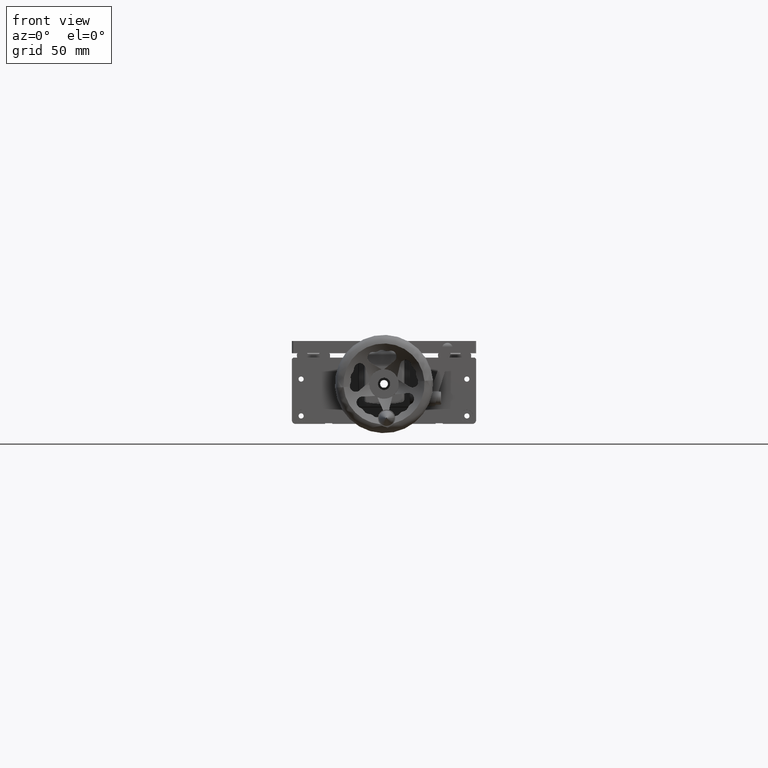
[diagram: clean part render]
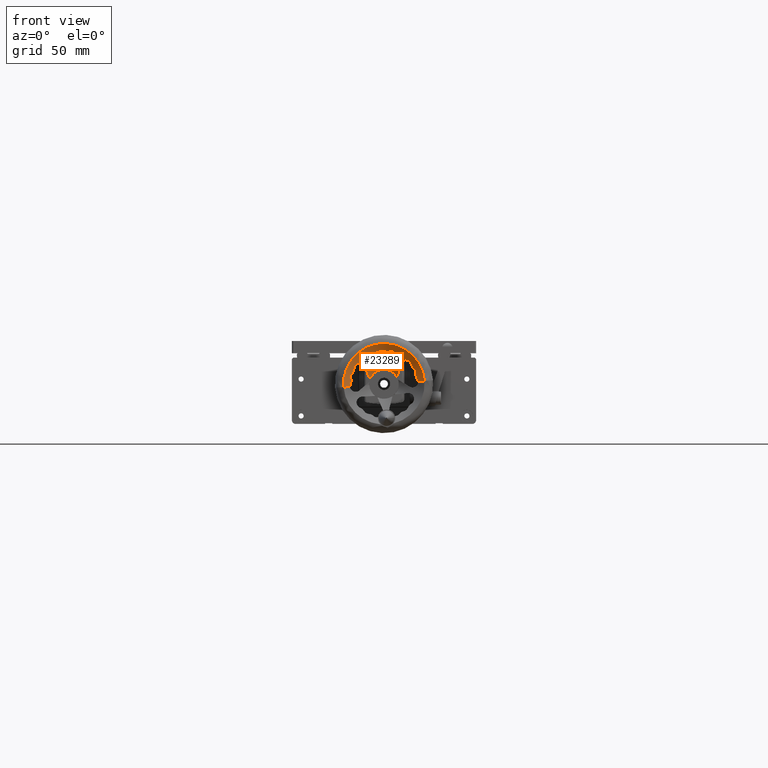
[diagram: same view with one face highlighted and labeled with its STEP entity id]
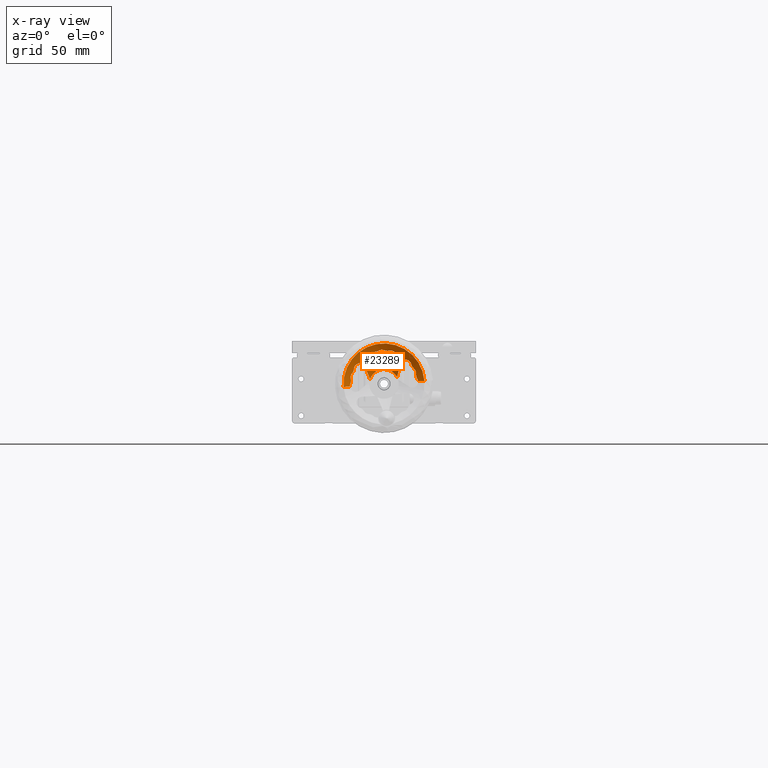
[diagram: x-ray of the same camera — body ghosted, the highlighted face saturated]
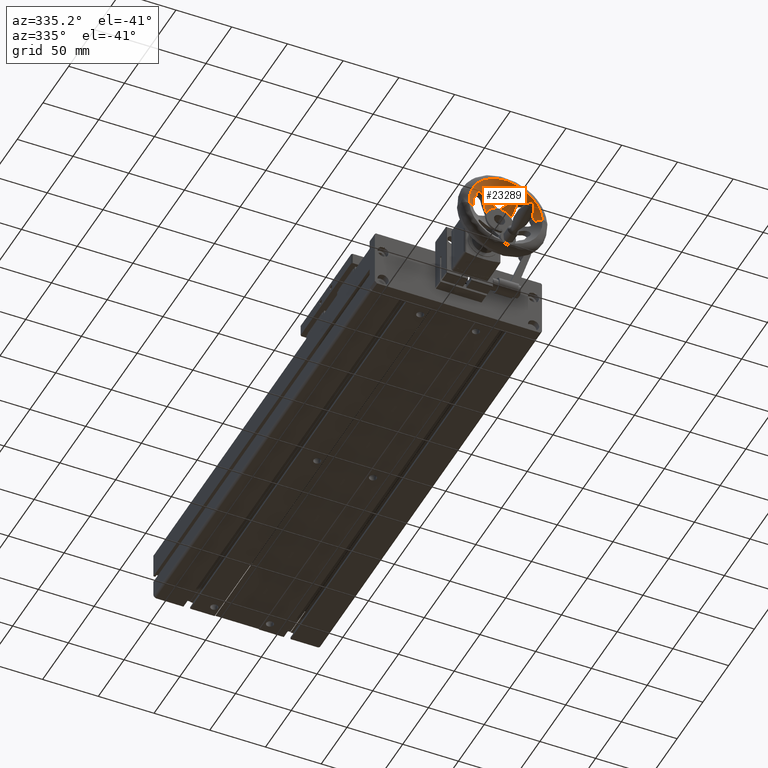
[diagram: same view with one face highlighted and labeled with its STEP entity id]
A machine part, front view. The second image highlights one B-rep face of the part: STEP entity #23289.
The next image is the same camera in x-ray: the body ghosted, the highlighted face saturated — about 0% of this face is hidden behind the body in this view.
A second angle (auxiliary view) of the same face is appended — the face is thin or edge-on in the first view.
In plain terms, the highlighted toroidal blend (fillet) surface has major radius 88.219 mm and minor (blend) radius 200 mm.
Its self-contained STEP definition (entity closure, byte-faithful):
#82 = B_SPLINE_CURVE_WITH_KNOTS ( 'NONE', 3,
 ( #43382, #9502, #24580, #35949 ),
 .UNSPECIFIED., .F., .F.,
 ( 4, 4 ),
 ( 0.003698056884272753024, 0.004453585710520117057 ),
 .UNSPECIFIED. ) ;
#85 = CARTESIAN_POINT ( 'NONE',  ( -52.67390733031064798, -230.6532000495078307, 23.08059119736535791 ) ) ;
#232 = CARTESIAN_POINT ( 'NONE',  ( -17.67465328702080285, -228.9157247906524333, 34.79869210840796967 ) ) ;
#454 = CARTESIAN_POINT ( 'NONE',  ( -54.95156363121439114, -231.2657713218469269, 18.90287018897480209 ) ) ;
#473 = CARTESIAN_POINT ( 'NONE',  ( -27.82647947996337479, -394.1257330768476095, 12.50000000000238920 ) ) ;
#564 = CARTESIAN_POINT ( 'NONE',  ( -5.594673746009703130, -230.9596663953782354, 28.58295155194748816 ) ) ;
#578 = CARTESIAN_POINT ( 'NONE',  ( -41.29862336663559574, -229.2852968396922790, 33.60711997345902091 ) ) ;
#693 = CARTESIAN_POINT ( 'NONE',  ( -55.03964226252472258, -231.2128299124468640, 18.16332217741607025 ) ) ;
#727 = EDGE_CURVE ( 'NONE', #47162, #46228, #4258, .T. ) ;
#808 = CARTESIAN_POINT ( 'NONE',  ( -7.707108599247605163, -231.1299468171497722, 31.51114292031698838 ) ) ;
#1100 = CARTESIAN_POINT ( 'NONE',  ( -39.20836809578368332, -221.0472645979106119, 16.30165905060681908 ) ) ;
#1183 = CARTESIAN_POINT ( 'NONE',  ( -4.557202331667935979, -230.6599187543164931, 26.22586071606409419 ) ) ;
#1306 = CARTESIAN_POINT ( 'NONE',  ( -1.785231399503061311, -231.2252468472366331, 22.27320990225285158 ) ) ;
#1534 = EDGE_CURVE ( 'NONE', #8725, #44437, #40959, .T. ) ;
#1537 = CARTESIAN_POINT ( 'NONE',  ( -0.1476990213807676533, -231.2327819996210962, 15.34137965526658220 ) ) ;
#1549 = DIRECTION ( 'NONE',  ( -0.07554112040527208305, 7.702172233337027443E-16, 0.9971426874464437429 ) ) ;
#1609 = B_SPLINE_CURVE_WITH_KNOTS ( 'NONE', 3,
 ( #41948, #15498, #30090, #693, #34037, #7847, #454, #26630, #41704, #11799, #26876, #33551 ),
 .UNSPECIFIED., .F., .F.,
 ( 4, 2, 2, 2, 2, 4 ),
 ( 0.000000000000000000, 0.001113396427630006062, 0.001670094641445014948, 0.002226792855260023834, 0.003340189282890042039, 0.004453585710520059811 ),
 .UNSPECIFIED. ) ;
#1640 = CARTESIAN_POINT ( 'NONE',  ( -29.18489885742737400, -231.2390054240903225, 40.30156600585516458 ) ) ;
#1877 = CARTESIAN_POINT ( 'NONE',  ( -28.45891885557747258, -231.1356288341648622, 40.18228834347160472 ) ) ;
#1917 = CARTESIAN_POINT ( 'NONE',  ( -3.606528884275387536, -230.8604761307231570, 25.10003856072996697 ) ) ;
#1946 = CARTESIAN_POINT ( 'NONE',  ( -26.27683208272021531, -221.7940607396463975, 25.70519006857440303 ) ) ;
#2015 = EDGE_CURVE ( 'NONE', #29307, #17644, #19300, .T. ) ;
#2090 = VERTEX_POINT ( 'NONE', #16914 ) ;
#2147 = CARTESIAN_POINT ( 'NONE',  ( -33.71041444142429100, -223.0604045670582707, 26.74357945796421987 ) ) ;
#2185 = CARTESIAN_POINT ( 'NONE',  ( -41.28435566092093723, -229.1709464758500587, 33.41878627727218287 ) ) ;
#2354 = CARTESIAN_POINT ( 'NONE',  ( -54.77278819947463262, -230.6531243515184144, 14.32714248308307958 ) ) ;
#2534 = EDGE_CURVE ( 'NONE', #44437, #17465, #6978, .T. ) ;
#2693 = CARTESIAN_POINT ( 'NONE',  ( -1.222462051564195962, -230.7139133281195882, 17.64809797551897219 ) ) ;
#2807 = CARTESIAN_POINT ( 'NONE',  ( -52.31303898568580024, -230.7841996747562803, 24.32834466755367586 ) ) ;
#2958 = CARTESIAN_POINT ( 'NONE',  ( -18.20508513389714977, -230.3162707390104913, 37.22085767712715665 ) ) ;
#3223 = CARTESIAN_POINT ( 'NONE',  ( -48.87678897796342881, -230.5446354805235956, 29.17158151248903408 ) ) ;
#3238 = ORIENTED_EDGE ( 'NONE', *, *, #23861, .F. ) ;
#3331 = CARTESIAN_POINT ( 'NONE',  ( -15.08588966018944610, -225.4012652566501060, 26.86422434737739806 ) ) ;
#3335 = EDGE_CURVE ( 'NONE', #31148, #36350, #10371, .T. ) ;
#3364 = CARTESIAN_POINT ( 'NONE',  ( -5.511643270383935089, -230.8604277091206995, 28.22931795733495264 ) ) ;
#3433 = CARTESIAN_POINT ( 'NONE',  ( -25.25359631021355966, -230.6599187452453918, 39.39309916879454931 ) ) ;
#3671 = CARTESIAN_POINT ( 'NONE',  ( -27.43543373053230638, -230.8604277933411311, 39.79854296812268899 ) ) ;
#3676 = CARTESIAN_POINT ( 'NONE',  ( -22.01975614839867745, -231.2314881548962262, 39.71061589711028716 ) ) ;
#3928 = CARTESIAN_POINT ( 'NONE',  ( -20.61792992746027409, -231.2440946140839060, 39.39157432133833936 ) ) ;
#3949 = CARTESIAN_POINT ( 'NONE',  ( -51.51233786122890734, -231.2706462050042262, 27.20291671497873764 ) ) ;
#3966 = CARTESIAN_POINT ( 'NONE',  ( -39.54603924097030898, -231.1660041917473905, 37.63397790699910672 ) ) ;
#3996 = CARTESIAN_POINT ( 'NONE',  ( -39.05087468797678696, -226.4222165838499166, 29.95913909891122273 ) ) ;
#4202 = CARTESIAN_POINT ( 'NONE',  ( -40.82071884220610514, -230.5771823532638791, 36.05125999424510042 ) ) ;
#4258 = B_SPLINE_CURVE_WITH_KNOTS ( 'NONE', 3,
 ( #1100, #31477, #24046, #46070, #12688, #46570, #4792, #45834 ),
 .UNSPECIFIED., .F., .F.,
 ( 4, 2, 2, 4 ),
 ( 1.250926888277100334E-16, 0.003033436196410289973, 0.006066872392820455047, 0.01213374478564074703 ),
 .UNSPECIFIED. ) ;
#4492 = CARTESIAN_POINT ( 'NONE',  ( -6.112206760636909486, -231.2307636894806535, 29.89450412591488515 ) ) ;
#4651 = DIRECTION ( 'NONE',  ( 4.298706452838559615E-15, 1.000000000000000000, -4.467646678869439002E-16 ) ) ;
#4699 = CARTESIAN_POINT ( 'NONE',  ( -41.24002553616512046, -229.9845705142102190, 34.83384085275373110 ) ) ;
#4792 = CARTESIAN_POINT ( 'NONE',  ( -42.58564026677970560, -225.4012652566524935, 24.78090969458392223 ) ) ;
#4899 = CARTESIAN_POINT ( 'NONE',  ( -17.14721350128712274, -221.0472645979109814, 17.97295881189756983 ) ) ;
#5472 = CARTESIAN_POINT ( 'NONE',  ( -11.55141506732128676, -229.5186692799599371, 31.97443235392964667 ) ) ;
#5540 = CARTESIAN_POINT ( 'NONE',  ( -35.51959555577328587, -230.7828937303669647, 38.58099468911488117 ) ) ;
#5638 = CARTESIAN_POINT ( 'NONE',  ( -26.99574536854892770, -221.4030008482864673, 25.10796967396344925 ) ) ;
#6159 = AXIS2_PLACEMENT_3D ( 'NONE', #28352, #8590, #31813 ) ;
#6455 = DIRECTION ( 'NONE',  ( 4.298706452838559615E-15, 1.000000000000000000, -4.467646678869439002E-16 ) ) ;
#6661 = CARTESIAN_POINT ( 'NONE',  ( -46.12871765139978919, -229.0706407530628610, 29.12783935230849153 ) ) ;
#6684 = ORIENTED_EDGE ( 'NONE', *, *, #16037, .T. ) ;
#6853 = CARTESIAN_POINT ( 'NONE',  ( -5.594673746009703130, -230.9596663953782354, 28.58295155194748816 ) ) ;
#6908 = EDGE_CURVE ( 'NONE', #30197, #42922, #13836, .T. ) ;
#6949 = VERTEX_POINT ( 'NONE', #6853 ) ;
#6978 = B_SPLINE_CURVE_WITH_KNOTS ( 'NONE', 3,
 ( #34060, #22432, #29619, #7624, #29367, #22686, #41238, #26405, #41480, #232, #11094, #26167, #30352, #21711, #2958, #22195, #37530, #45451, #41005, #44702, #15031, #40753, #3928, #18731, #21959, #3676, #10846, #18483, #37286, #11579 ),
 .UNSPECIFIED., .F., .F.,
 ( 4, 2, 2, 2, 2, 2, 2, 2, 2, 2, 2, 2, 2, 2, 4 ),
 ( 1.734723475976807094E-17, 0.001710417995197624063, 0.002565626992796427638, 0.003420835990395230779, 0.004276044987994034353, 0.005131253985592837928, 0.006841671980790444210, 0.007696880978389238244, 0.008552089975988032278, 0.009407298973586827179, 0.01026250797118562208, 0.01111771696878441525, 0.01197292596638321015, 0.01282813496398200331, 0.01368334396158079821 ),
 .UNSPECIFIED. ) ;
#7162 = CARTESIAN_POINT ( 'NONE',  ( -46.83643082899709498, -229.5185468306613359, 29.31727930400391458 ) ) ;
#7408 = DIRECTION ( 'NONE',  ( -0.9971426874464436318, 4.625929269271486111E-15, -0.07554112040527286021 ) ) ;
#7624 = CARTESIAN_POINT ( 'NONE',  ( -18.27405719886101565, -227.4900567352808025, 32.74147555680799826 ) ) ;
#7784 = B_SPLINE_CURVE_WITH_KNOTS ( 'NONE', 3,
 ( #11940, #30473, #22071, #41601 ),
 .UNSPECIFIED., .F., .F.,
 ( 4, 4 ),
 ( 0.003331543131867396954, 0.004457104842118895377 ),
 .UNSPECIFIED. ) ;
#7847 = CARTESIAN_POINT ( 'NONE',  ( -54.98449668841060856, -231.2591845239851693, 18.72044791958629872 ) ) ;
#8028 = VERTEX_POINT ( 'NONE', #30320 ) ;
#8313 = VERTEX_POINT ( 'NONE', #47134 ) ;
#8385 = CARTESIAN_POINT ( 'NONE',  ( -38.95530753739082996, -231.2451208571029611, 38.02055969152151249 ) ) ;
#8396 = ORIENTED_EDGE ( 'NONE', *, *, #23127, .F. ) ;
#8443 = VERTEX_POINT ( 'NONE', #10259 ) ;
#8472 = CARTESIAN_POINT ( 'NONE',  ( -53.90538829313129554, -230.9596664563088666, 21.03258674998555833 ) ) ;
#8576 = ORIENTED_EDGE ( 'NONE', *, *, #29305, .T. ) ;
#8590 = DIRECTION ( 'NONE',  ( 0.07554112040527195815, -7.702172233337023499E-16, -0.9971426874464437429 ) ) ;
#8725 = VERTEX_POINT ( 'NONE', #36893 ) ;
#8778 = CARTESIAN_POINT ( 'NONE',  ( -30.30277080671440970, -231.2591845237836594, 40.25103335488402223 ) ) ;
#8814 = CARTESIAN_POINT ( 'NONE',  ( -4.661649664188309394, -230.6532000530875166, 26.38287580951248756 ) ) ;
#9221 = CARTESIAN_POINT ( 'NONE',  ( -39.20836809578368332, -221.0472645979106119, 16.30165905060681908 ) ) ;
#9222 = ORIENTED_EDGE ( 'NONE', *, *, #27879, .F. ) ;
#9264 = CARTESIAN_POINT ( 'NONE',  ( -31.37639499352703965, -231.1347387500529180, 39.95976834130147637 ) ) ;
#9340 = CARTESIAN_POINT ( 'NONE',  ( -39.67807669577369012, -226.8822082838672145, 30.39239254586065897 ) ) ;
#9467 = CARTESIAN_POINT ( 'NONE',  ( -34.41563106280570139, -230.6531243522441059, 38.69208057288691549 ) ) ;
#9502 = CARTESIAN_POINT ( 'NONE',  ( -1.691176848825176382, -231.0841938273595417, 21.42077416371177989 ) ) ;
#9542 = CARTESIAN_POINT ( 'NONE',  ( -37.55060987438738351, -225.4012652566472070, 29.05581040389767722 ) ) ;
#9740 = CARTESIAN_POINT ( 'NONE',  ( -27.77033326856107465, -230.9596664961958936, 39.93923047635674806 ) ) ;
#9782 = CARTESIAN_POINT ( 'NONE',  ( -4.337567053168426057, -230.6865836009214661, 25.92289695455112053 ) ) ;
#10133 = CARTESIAN_POINT ( 'NONE',  ( -43.41919839021870331, -226.7145665476631962, 26.87370763833941822 ) ) ;
#10237 = DIRECTION ( 'NONE',  ( -4.298706452838559615E-15, -1.000000000000000000, 4.467646678869439002E-16 ) ) ;
#10259 = CARTESIAN_POINT ( 'NONE',  ( 5.079229205769499877, -235.0472645979107824, 14.99285697337626466 ) ) ;
#10371 = B_SPLINE_CURVE_WITH_KNOTS ( 'NONE', 3,
 ( #45096, #3331, #47835, #18382, #37424, #33475, #48586, #10985 ),
 .UNSPECIFIED., .F., .F.,
 ( 4, 2, 2, 4 ),
 ( 3.899695414178870916E-16, 0.006066872392817469588, 0.009100308589225990577, 0.01213374478563451070 ),
 .UNSPECIFIED. ) ;
#10489 = CARTESIAN_POINT ( 'NONE',  ( -9.249767310456496361, -230.6556149519027770, 32.10769443302439186 ) ) ;
#10611 = CARTESIAN_POINT ( 'NONE',  ( -44.84237441322410689, -228.1301285126478149, 28.47637828949076777 ) ) ;
#10632 = CARTESIAN_POINT ( 'NONE',  ( -32.01572010653750766, -230.9596664132260742, 39.61761022849049141 ) ) ;
#10654 = CARTESIAN_POINT ( 'NONE',  ( -27.82647947996269266, -235.0472645979106403, 12.50000000000231815 ) ) ;
#10730 = CARTESIAN_POINT ( 'NONE',  ( -54.71918968584881071, -230.6865836019238998, 15.44708457711800165 ) ) ;
#10841 = CARTESIAN_POINT ( 'NONE',  ( -24.14381829159810522, -230.7841996630287724, 39.44326148905463469 ) ) ;
#10846 = CARTESIAN_POINT ( 'NONE',  ( -22.30498103527281728, -231.1977958584855912, 39.72157898649940933 ) ) ;
#10985 = CARTESIAN_POINT ( 'NONE',  ( -17.14721350128712274, -221.0472645979109814, 17.97295881189756983 ) ) ;
#11094 = CARTESIAN_POINT ( 'NONE',  ( -17.66816714205099004, -229.0706407672514899, 35.04474783805611082 ) ) ;
#11111 = VERTEX_POINT ( 'NONE', #46970 ) ;
#11190 = CARTESIAN_POINT ( 'NONE',  ( -53.44834770248142775, -230.7828937674311760, 21.60616223109007805 ) ) ;
#11360 = CARTESIAN_POINT ( 'NONE',  ( -45.89670907696993396, -228.9157247770241099, 29.04563525917123457 ) ) ;
#11579 = CARTESIAN_POINT ( 'NONE',  ( -23.43088182212946791, -230.9596664132258184, 39.58492642461180111 ) ) ;
#11622 = CARTESIAN_POINT ( 'NONE',  ( -38.31727656665854909, -231.2709559180369183, 38.32971794325673187 ) ) ;
#11675 = B_SPLINE_CURVE_WITH_KNOTS ( 'NONE', 3,
 ( #43995, #10133, #17773, #12881, #27961, #48225, #10611, #29899, #14317, #11360, #6661, #7162, #41505, #41024, #29153, #3223, #48467, #29387, #26187, #25946, #44237, #18268, #44476, #3949, #33599, #48707, #26429, #25687, #21734, #40772 ),
 .UNSPECIFIED., .F., .F.,
 ( 4, 2, 2, 2, 2, 2, 2, 2, 2, 2, 2, 2, 2, 2, 4 ),
 ( 9.813077866773593251E-18, 0.001710417985831582050, 0.002565626978747364943, 0.003420835971663148053, 0.004276044964578931164, 0.005131253957494713407, 0.006841671943326276158, 0.007696880936242031512, 0.008552089929157787734, 0.009407298922073540487, 0.01026250791498929497, 0.01111771690790504946, 0.01197292590082080395, 0.01282813489373655844, 0.01368334388665231292 ),
 .UNSPECIFIED. ) ;
#11799 = CARTESIAN_POINT ( 'NONE',  ( -54.34933470578325654, -231.1356288327107791, 20.45281195881515046 ) ) ;
#11857 = CARTESIAN_POINT ( 'NONE',  ( -40.28577853425090183, -230.9290274298862471, 36.90122844277672698 ) ) ;
#11940 = CARTESIAN_POINT ( 'NONE',  ( -1.717283661433653075, -230.7295666138571448, 19.81287386130084371 ) ) ;
#12009 = ORIENTED_EDGE ( 'NONE', *, *, #6908, .F. ) ;
#12114 = ORIENTED_EDGE ( 'NONE', *, *, #29441, .F. ) ;
#12128 = VERTEX_POINT ( 'NONE', #22367 ) ;
#12306 = VERTEX_POINT ( 'NONE', #33214 ) ;
#12353 = CARTESIAN_POINT ( 'NONE',  ( -55.61684617909507011, -231.2658271515405204, 10.39466897430750514 ) ) ;
#12391 = CARTESIAN_POINT ( 'NONE',  ( -12.85813473543056240, -228.6074920186753729, 31.32132866833777740 ) ) ;
#12544 = VERTEX_POINT ( 'NONE', #8472 ) ;
#12688 = CARTESIAN_POINT ( 'NONE',  ( -40.92696274858333538, -223.0604045670598623, 20.61650075677261995 ) ) ;
#12879 = AXIS2_PLACEMENT_3D ( 'NONE', #43802, #25024, #7408 ) ;
#12881 = CARTESIAN_POINT ( 'NONE',  ( -44.12540587923259494, -227.4900567292112612, 27.83985338831459444 ) ) ;
#12882 = CARTESIAN_POINT ( 'NONE',  ( -13.88249829643890365, -227.6530563109671448, 30.32040538368483595 ) ) ;
#12898 = CARTESIAN_POINT ( 'NONE',  ( -3.101732544837720873, -231.0419695317909543, 24.66815996622788631 ) ) ;
#12951 = CARTESIAN_POINT ( 'NONE',  ( -36.25226956726548622, -230.9596663953781217, 38.61360906154623507 ) ) ;
#13057 = CARTESIAN_POINT ( 'NONE',  ( -41.13872838868501702, -228.6978953784459918, 32.68638664340360123 ) ) ;
#13264 = CARTESIAN_POINT ( 'NONE',  ( -39.05087468797678696, -226.4222165838499166, 29.95913909891122273 ) ) ;
#13349 = CARTESIAN_POINT ( 'NONE',  ( -0.03611278083028897357, -231.2658271515406909, 14.60533102569724662 ) ) ;
#13494 = ORIENTED_EDGE ( 'NONE', *, *, #18638, .T. ) ;
#13495 = CARTESIAN_POINT ( 'NONE',  ( -3.864309005543599351, -230.7841996931746849, 25.35751615061857933 ) ) ;
#13524 = CARTESIAN_POINT ( 'NONE',  ( -20.70747179473723065, -225.4012652566526640, 30.33180584336236052 ) ) ;
#13529 = CARTESIAN_POINT ( 'NONE',  ( -41.02471212221548313, -228.4576811112556243, 32.33686378989789034 ) ) ;
#13746 = ORIENTED_EDGE ( 'NONE', *, *, #25798, .F. ) ;
#13836 = B_SPLINE_CURVE_WITH_KNOTS ( 'NONE', 3,
 ( #21178, #2185, #42965, #39258, #13057, #13529, #17461, #20461, #16752, #17230, #46943, #9340, #32319, #35790 ),
 .UNSPECIFIED., .F., .F.,
 ( 4, 2, 2, 2, 2, 2, 4 ),
 ( 0.008474654097250431534, 0.009134211745428808676, 0.009793769393607184084, 0.01045332704178556123, 0.01111288468996393664, 0.01243199998632067704, 0.01375111528267741745 ),
 .UNSPECIFIED. ) ;
#14317 = CARTESIAN_POINT ( 'NONE',  ( -45.45385495941651044, -228.6034456292861137, 28.84878373790523653 ) ) ;
#14335 = ORIENTED_EDGE ( 'NONE', *, *, #17009, .T. ) ;
#14892 = CARTESIAN_POINT ( 'NONE',  ( -52.60827204761010023, -230.6599187474724602, 23.25738202415041300 ) ) ;
#14922 = B_SPLINE_CURVE_WITH_KNOTS ( 'NONE', 3,
 ( #48930, #21698, #2693, #36787, #15019, #41716, #19201, #31075 ),
 .UNSPECIFIED., .F., .F.,
 ( 4, 2, 2, 4 ),
 ( 3.774035969552830620E-17, 0.001665771565933717342, 0.002498657348900556931, 0.003331543131867396954 ),
 .UNSPECIFIED. ) ;
#15019 = CARTESIAN_POINT ( 'NONE',  ( -1.552145645833394205, -230.6483000941420016, 18.71849383253596244 ) ) ;
#15031 = CARTESIAN_POINT ( 'NONE',  ( -19.85250087208034131, -231.1270689145548829, 39.00294621420946584 ) ) ;
#15247 = EDGE_CURVE ( 'NONE', #6949, #31148, #33255, .T. ) ;
#15258 = CARTESIAN_POINT ( 'NONE',  ( -43.23364257840049873, -226.4222165838593810, 26.40783632054456831 ) ) ;
#15272 = CARTESIAN_POINT ( 'NONE',  ( -25.99933721304265788, -230.6531243613654283, 39.44630874829438483 ) ) ;
#15316 = CARTESIAN_POINT ( 'NONE',  ( -36.25226956726548622, -230.9596663953781217, 38.61360906154623507 ) ) ;
#15498 = CARTESIAN_POINT ( 'NONE',  ( -54.99580234014707969, -231.0587844106613602, 17.24845366566926685 ) ) ;
#15611 = CARTESIAN_POINT ( 'NONE',  ( -6.918471877808019421, -231.2516547550109465, 30.89850046893487345 ) ) ;
#15641 = EDGE_CURVE ( 'NONE', #21743, #30197, #43297, .T. ) ;
#15694 = CARTESIAN_POINT ( 'NONE',  ( -14.69038034189883390, -226.4222165838515934, 28.57020489277563158 ) ) ;
#15800 = CARTESIAN_POINT ( 'NONE',  ( -37.46271814605626815, -231.2049279898749035, 38.56054914162387348 ) ) ;
#15850 = CARTESIAN_POINT ( 'NONE',  ( -7.954572327149966426, -231.0716637388796642, 31.65151724641324193 ) ) ;
#15954 = ORIENTED_EDGE ( 'NONE', *, *, #3335, .F. ) ;
#16037 = EDGE_CURVE ( 'NONE', #8313, #12544, #1609, .T. ) ;
#16043 = CARTESIAN_POINT ( 'NONE',  ( -40.74331836302079779, -230.6424690281264986, 36.19947359486510408 ) ) ;
#16329 = CARTESIAN_POINT ( 'NONE',  ( -0.3643233461119283478, -231.1358801580701368, 16.04377162237389598 ) ) ;
#16469 = VERTEX_POINT ( 'NONE', #36171 ) ;
#16479 = CARTESIAN_POINT ( 'NONE',  ( -5.399283136547426309, -230.7828937303671353, 27.87605876365554636 ) ) ;
#16572 = CARTESIAN_POINT ( 'NONE',  ( -0.05019668824092277104, -231.2658271515407478, 14.79123858451915119 ) ) ;
#16585 = VERTEX_POINT ( 'NONE', #28984 ) ;
#16627 = VERTEX_POINT ( 'NONE', #26769 ) ;
#16672 = CARTESIAN_POINT ( 'NONE',  ( -29.56427321130262698, -231.2659377550064619, 40.31839736837605415 ) ) ;
#16752 = CARTESIAN_POINT ( 'NONE',  ( -40.71575348788409343, -227.9685632785865721, 31.66929411916948212 ) ) ;
#16820 = CARTESIAN_POINT ( 'NONE',  ( -13.04924410248514910, -228.4506557143349141, 31.17725140566467701 ) ) ;
#16914 = CARTESIAN_POINT ( 'NONE',  ( -29.73149794656968226, -221.0472645979109245, 24.34782278066056804 ) ) ;
#17009 = EDGE_CURVE ( 'NONE', #16469, #11111, #23518, .T. ) ;
#17059 = B_SPLINE_CURVE_WITH_KNOTS ( 'NONE', 3,
 ( #13349, #16572, #43269, #1537, #35849, #16329, #31661, #20740 ),
 .UNSPECIFIED., .F., .F.,
 ( 4, 2, 2, 4 ),
 ( 0.01147918035795805064, 0.01203022124013161318, 0.01258126212230517571, 0.01368334388665229905 ),
 .UNSPECIFIED. ) ;
#17065 = DIRECTION ( 'NONE',  ( 0.9971426874464437429, 0.000000000000000000, 0.07554112040527208305 ) ) ;
#17121 = CARTESIAN_POINT ( 'NONE',  ( -32.01572010653750766, -230.9596664132260742, 39.61761022849049141 ) ) ;
#17226 = CARTESIAN_POINT ( 'NONE',  ( -27.72808387752419890, -221.0472645979106403, 24.49959658928067086 ) ) ;
#17230 = CARTESIAN_POINT ( 'NONE',  ( -40.42719675010799563, -227.6007957380787161, 31.20023632668228686 ) ) ;
#17461 = CARTESIAN_POINT ( 'NONE',  ( -40.95763521185892131, -228.3365862553704630, 32.16611709150507181 ) ) ;
#17465 = VERTEX_POINT ( 'NONE', #28522 ) ;
#17582 = EDGE_CURVE ( 'NONE', #12128, #16585, #7784, .T. ) ;
#17644 = VERTEX_POINT ( 'NONE', #19333 ) ;
#17736 = B_SPLINE_CURVE_WITH_KNOTS ( 'NONE', 3,
 ( #25768, #37631, #2807, #33924, #45055, #14892, #85, #30212, #29976, #11190, #29476, #44317 ),
 .UNSPECIFIED., .F., .F.,
 ( 4, 2, 2, 2, 2, 4 ),
 ( 3.538155541877297313E-17, 0.001114276210529795618, 0.001671414315794672503, 0.002228552421059550037, 0.003342828631589305106, 0.004457104842119060176 ),
 .UNSPECIFIED. ) ;
#17773 = CARTESIAN_POINT ( 'NONE',  ( -43.66833472391281390, -227.0192036694134288, 27.28703771704373082 ) ) ;
#17896 = CARTESIAN_POINT ( 'NONE',  ( -5.972467919540295433, -231.1960453808966065, 29.63958319226526328 ) ) ;
#18268 = CARTESIAN_POINT ( 'NONE',  ( -50.98551660573696864, -231.2154519200251173, 27.87984806961713602 ) ) ;
#18373 = CARTESIAN_POINT ( 'NONE',  ( -54.72737013222339897, -230.6532000534531619, 14.88446289104675024 ) ) ;
#18382 = CARTESIAN_POINT ( 'NONE',  ( -16.09826631798863517, -223.0604045670585265, 22.49746279979789776 ) ) ;
#18479 = CARTESIAN_POINT ( 'NONE',  ( -25.44201679322950227, -230.6532000484873208, 39.40089066333084844 ) ) ;
#18483 = CARTESIAN_POINT ( 'NONE',  ( -22.87494595173260947, -231.1002210257393301, 39.69158499891209146 ) ) ;
#18638 = EDGE_CURVE ( 'NONE', #22967, #16585, #82, .T. ) ;
#18707 = EDGE_CURVE ( 'NONE', #8313, #19955, #26596, .T. ) ;
#18731 = CARTESIAN_POINT ( 'NONE',  ( -21.16250755692458796, -231.2706462057042813, 39.57004110543438458 ) ) ;
#18770 = CARTESIAN_POINT ( 'NONE',  ( -40.48766183040856959, -230.8246480840628010, 36.63030447816802138 ) ) ;
#19009 = CARTESIAN_POINT ( 'NONE',  ( -55.63087259773213589, -231.2658271515405488, 10.57981768139541146 ) ) ;
#19048 = CARTESIAN_POINT ( 'NONE',  ( -5.746798111821793675, -231.0988003334201721, 29.12153893849552588 ) ) ;
#19201 = CARTESIAN_POINT ( 'NONE',  ( -1.696390408378760206, -230.6912643176353583, 19.53708294916075872 ) ) ;
#19300 = B_SPLINE_CURVE_WITH_KNOTS ( 'NONE', 3,
 ( #32476, #27585, #9264, #28532, #36193, #8778, #43605, #16672, #1640, #1877, #24348, #9740 ),
 .UNSPECIFIED., .F., .F.,
 ( 4, 2, 2, 2, 2, 4 ),
 ( 0.000000000000000000, 0.001113396425192979136, 0.001670094637789466211, 0.002226792850385953502, 0.003340189275578927218, 0.004453585700771901801 ),
 .UNSPECIFIED. ) ;
#19310 = EDGE_CURVE ( 'NONE', #16469, #8443, #24228, .T. ) ;
#19333 = CARTESIAN_POINT ( 'NONE',  ( -27.77033326856107465, -230.9596664961958936, 39.93923047635674806 ) ) ;
#19441 = ORIENTED_EDGE ( 'NONE', *, *, #26817, .F. ) ;
#19738 = CARTESIAN_POINT ( 'NONE',  ( -41.31536102479370953, -229.6455795070858983, 34.21545216845822779 ) ) ;
#19955 = VERTEX_POINT ( 'NONE', #27823 ) ;
#20025 = CARTESIAN_POINT ( 'NONE',  ( -14.37431944683643614, -227.0263227924084788, 29.50242057365009529 ) ) ;
#20269 = CARTESIAN_POINT ( 'NONE',  ( -12.23565641507226864, -229.0724057764062422, 31.69664529948307319 ) ) ;
#20423 = CARTESIAN_POINT ( 'NONE',  ( -32.92950552413935128, -222.6226366815943152, 26.27338417857830777 ) ) ;
#20461 = CARTESIAN_POINT ( 'NONE',  ( -40.80341552535290361, -228.0923246801206119, 31.83269587247192334 ) ) ;
#20740 = CARTESIAN_POINT ( 'NONE',  ( -0.7088692954568474036, -230.9596664332800060, 16.68924069848683089 ) ) ;
#20741 = CIRCLE ( 'NONE', #12879, 11.99999999999999822 ) ;
#20807 = AXIS2_PLACEMENT_3D ( 'NONE', #39567, #1549, #17065 ) ;
#21097 = CARTESIAN_POINT ( 'NONE',  ( -54.71957864335205812, -230.6599187549663839, 15.07288337052121285 ) ) ;
#21141 = AXIS2_PLACEMENT_3D ( 'NONE', #36436, #10237, #40389 ) ;
#21178 = CARTESIAN_POINT ( 'NONE',  ( -41.29862336663559574, -229.2852968396922790, 33.60711997345902091 ) ) ;
#21209 = ORIENTED_EDGE ( 'NONE', *, *, #21843, .F. ) ;
#21257 = CARTESIAN_POINT ( 'NONE',  ( -1.953098961300612890, -231.2684661289041230, 22.87342626463408735 ) ) ;
#21598 = B_SPLINE_CURVE_WITH_KNOTS ( 'NONE', 3,
 ( #17121, #31733, #43348, #39625, #46835, #32444, #47075, #9467, #47546, #5540, #43807, #12951 ),
 .UNSPECIFIED., .F., .F.,
 ( 4, 2, 2, 2, 2, 4 ),
 ( -1.469766248811399389E-10, 0.001114276024044774617, 0.001671414109555478377, 0.002228552195066181921, 0.003342828366087594646, 0.004457104537109006503 ),
 .UNSPECIFIED. ) ;
#21698 = CARTESIAN_POINT ( 'NONE',  ( -0.9920733588889456556, -230.8113833044535284, 17.15226973529853183 ) ) ;
#21711 = CARTESIAN_POINT ( 'NONE',  ( -18.09070384062738412, -230.1936771873863279, 36.98742159013250586 ) ) ;
#21734 = CARTESIAN_POINT ( 'NONE',  ( -52.20517285178925704, -231.0364455747976820, 25.33031927049965759 ) ) ;
#21743 = VERTEX_POINT ( 'NONE', #26975 ) ;
#21840 = CARTESIAN_POINT ( 'NONE',  ( -54.83225293482365004, -230.6793691775528146, 13.96173033337506908 ) ) ;
#21843 = EDGE_CURVE ( 'NONE', #46228, #12306, #11675, .T. ) ;
#21959 = CARTESIAN_POINT ( 'NONE',  ( -21.44884126854018191, -231.2681675500790561, 39.63536675422233202 ) ) ;
#22055 = ORIENTED_EDGE ( 'NONE', *, *, #28156, .F. ) ;
#22071 = CARTESIAN_POINT ( 'NONE',  ( -1.743489532065091607, -230.8594226583805096, 20.56014073416136156 ) ) ;
#22191 = CARTESIAN_POINT ( 'NONE',  ( -24.87939509073801503, -230.6865835839498402, 39.39271020088952469 ) ) ;
#22195 = CARTESIAN_POINT ( 'NONE',  ( -18.47576664013246273, -230.5446354971958556, 37.67183606235567339 ) ) ;
#22310 = ORIENTED_EDGE ( 'NONE', *, *, #17582, .F. ) ;
#22367 = CARTESIAN_POINT ( 'NONE',  ( -1.717283661433653075, -230.7295666138571448, 19.81287386130084371 ) ) ;
#22427 = CARTESIAN_POINT ( 'NONE',  ( -24.69416842939728340, -230.7063936694196684, 39.40000453875668285 ) ) ;
#22432 = CARTESIAN_POINT ( 'NONE',  ( -18.97468629686923336, -226.7145665492641342, 31.77127686053785638 ) ) ;
#22472 = CARTESIAN_POINT ( 'NONE',  ( -41.17009601092145488, -230.1467556412366378, 35.14644175161594575 ) ) ;
#22498 = DIRECTION ( 'NONE',  ( -0.9971426874464438539, 4.205390244792258451E-15, -0.07554112040527199978 ) ) ;
#22686 = CARTESIAN_POINT ( 'NONE',  ( -17.96851839897196612, -227.9709854208679474, 33.39473694167589457 ) ) ;
#22959 = CARTESIAN_POINT ( 'NONE',  ( -36.94187154983471544, -231.1272769549022144, 38.63342749567068068 ) ) ;
#22967 = VERTEX_POINT ( 'NONE', #32119 ) ;
#23003 = CARTESIAN_POINT ( 'NONE',  ( -6.433601139829833393, -231.2678754046115728, 30.36962942714599478 ) ) ;
#23127 = EDGE_CURVE ( 'NONE', #17465, #17644, #34483, .T. ) ;
#23205 = CARTESIAN_POINT ( 'NONE',  ( -37.63803081624844538, -231.2254493560413948, 38.52587394767998319 ) ) ;
#23247 = CARTESIAN_POINT ( 'NONE',  ( -5.658688040699238364, -231.0361768311458945, 28.85559377236666379 ) ) ;
#23289 = ADVANCED_FACE ( 'NONE', ( #23661 ), #40902, .F. ) ;
#23460 = CARTESIAN_POINT ( 'NONE',  ( -39.81215084416654548, -231.1009350148751196, 37.40644999364469214 ) ) ;
#23507 = CARTESIAN_POINT ( 'NONE',  ( -14.02039945568158252, -227.4949366025861650, 30.12632483318116527 ) ) ;
#23518 = CIRCLE ( 'NONE', #6159, 200.0000000000050022 ) ;
#23661 = FACE_OUTER_BOUND ( 'NONE', #39402, .T. ) ;
#23759 = ORIENTED_EDGE ( 'NONE', *, *, #15641, .F. ) ;
#23861 = EDGE_CURVE ( 'NONE', #36350, #8725, #27492, .T. ) ;
#23865 = VERTEX_POINT ( 'NONE', #44343 ) ;
#23885 = CARTESIAN_POINT ( 'NONE',  ( -4.952490393404144875, -230.6531243522442765, 26.86045356478096835 ) ) ;
#23992 = CARTESIAN_POINT ( 'NONE',  ( -12.45209441186005961, -228.9178738112349549, 31.58071376781815331 ) ) ;
#24046 = CARTESIAN_POINT ( 'NONE',  ( -39.90649416255738657, -221.7940607396464543, 18.05443040024961476 ) ) ;
#24228 = CIRCLE ( 'NONE', #42407, 33.00000000000000711 ) ;
#24233 = CARTESIAN_POINT ( 'NONE',  ( -10.30313599986837758, -230.1981381626736436, 32.18978667577449215 ) ) ;
#24348 = CARTESIAN_POINT ( 'NONE',  ( -28.10490519563917644, -231.0588080328817853, 40.07978034997623240 ) ) ;
#24580 = CARTESIAN_POINT ( 'NONE',  ( -1.692321319262891643, -231.0269419708645557, 21.17118467647546254 ) ) ;
#24889 = CARTESIAN_POINT ( 'NONE',  ( -24.15550051025014611, -223.0604045670598339, 27.46743664793876860 ) ) ;
#25024 = DIRECTION ( 'NONE',  ( -4.298706452838559615E-15, -1.000000000000000000, 4.467646678869439002E-16 ) ) ;
#25064 = CARTESIAN_POINT ( 'NONE',  ( -55.00828303037857125, -230.7828937257423831, 13.24288243912940644 ) ) ;
#25687 = CARTESIAN_POINT ( 'NONE',  ( -52.15710555864200870, -231.1002210405309256, 25.61185016706270900 ) ) ;
#25768 = CARTESIAN_POINT ( 'NONE',  ( -52.22746086693567946, -230.9596664332798071, 25.05016442526990517 ) ) ;
#25798 = EDGE_CURVE ( 'NONE', #23865, #8028, #17059, .T. ) ;
#25946 = CARTESIAN_POINT ( 'NONE',  ( -50.34457634404368065, -231.0682110994574998, 28.44799778720447847 ) ) ;
#26119 = B_SPLINE_CURVE_WITH_KNOTS ( 'NONE', 3,
 ( #35754, #1917, #13495, #43648, #9782, #1183, #8814, #23885, #38978, #16479, #3364, #29804 ),
 .UNSPECIFIED., .F., .F.,
 ( 4, 2, 2, 2, 2, 4 ),
 ( -1.469766639124181484E-10, 0.001114276024044739489, 0.001671414109555445634, 0.002228552195066151997, 0.003342828366087556048, 0.004457104537108961401 ),
 .UNSPECIFIED. ) ;
#26167 = CARTESIAN_POINT ( 'NONE',  ( -17.70669444455412744, -229.5185468464328267, 35.77636323570747834 ) ) ;
#26187 = CARTESIAN_POINT ( 'NONE',  ( -49.88010744153961440, -230.9261969511675261, 28.74907281709489482 ) ) ;
#26201 = CARTESIAN_POINT ( 'NONE',  ( -37.98111326642636953, -231.2542024538801400, 38.43728193989952047 ) ) ;
#26405 = CARTESIAN_POINT ( 'NONE',  ( -17.76849449430806160, -228.4463586750178763, 34.08102330786631029 ) ) ;
#26424 = ORIENTED_EDGE ( 'NONE', *, *, #2015, .T. ) ;
#26429 = CARTESIAN_POINT ( 'NONE',  ( -52.00950268320527670, -231.1977958677377956, 26.16318766121444028 ) ) ;
#26445 = CARTESIAN_POINT ( 'NONE',  ( -40.95706143667199228, -230.4409009282474869, 35.75314158344242799 ) ) ;
#26451 = ORIENTED_EDGE ( 'NONE', *, *, #18707, .F. ) ;
#26596 = B_SPLINE_CURVE_WITH_KNOTS ( 'NONE', 3,
 ( #37169, #32713, #48330, #40387, #10730, #21097, #18373, #2354, #21840, #25064, #32477, #36933 ),
 .UNSPECIFIED., .F., .F.,
 ( 4, 2, 2, 2, 2, 4 ),
 ( -1.469766051486603997E-10, 0.001114276016371194963, 0.001671414098045090032, 0.002228552179718985317, 0.003342828343066770250, 0.004457104506414555183 ),
 .UNSPECIFIED. ) ;
#26630 = CARTESIAN_POINT ( 'NONE',  ( -54.82035536402489839, -231.2659377547784061, 19.44361749638445147 ) ) ;
#26769 = CARTESIAN_POINT ( 'NONE',  ( -3.330646112944441573, -230.9596664132261878, 24.86400700367345351 ) ) ;
#26817 = EDGE_CURVE ( 'NONE', #2090, #47162, #20741, .T. ) ;
#26876 = CARTESIAN_POINT ( 'NONE',  ( -54.14244757277844400, -231.0588080310189696, 20.75782224473171311 ) ) ;
#26975 = CARTESIAN_POINT ( 'NONE',  ( -36.25226956726548622, -230.9596663953781217, 38.61360906154623507 ) ) ;
#26976 = CARTESIAN_POINT ( 'NONE',  ( -7.025432768691862506, -231.2411873942975262, 30.99723483494163645 ) ) ;
#27179 = CARTESIAN_POINT ( 'NONE',  ( -55.40637495157335479, -231.0588892356517476, 12.22130029560695874 ) ) ;
#27474 = CARTESIAN_POINT ( 'NONE',  ( -14.26630310896795351, -227.1815717326842616, 29.71732665520703520 ) ) ;
#27492 = CIRCLE ( 'NONE', #21141, 11.99999999999999822 ) ;
#27585 = CARTESIAN_POINT ( 'NONE',  ( -31.70621416903864898, -231.0587844104443604, 39.80691442878631392 ) ) ;
#27823 = CARTESIAN_POINT ( 'NONE',  ( -55.26570985837574312, -230.9596663872225122, 12.55614644454843365 ) ) ;
#27835 = CIRCLE ( 'NONE', #20807, 200.0000000000050022 ) ;
#27879 = EDGE_CURVE ( 'NONE', #29307, #21743, #21598, .T. ) ;
#27961 = CARTESIAN_POINT ( 'NONE',  ( -44.29317561090606858, -227.6504783706211015, 28.01368196672693145 ) ) ;
#27976 = CARTESIAN_POINT ( 'NONE',  ( -2.345075082200413163, -231.2418174196799043, 23.70949516430141912 ) ) ;
#28151 = ORIENTED_EDGE ( 'NONE', *, *, #1534, .F. ) ;
#28156 = EDGE_CURVE ( 'NONE', #8443, #23865, #27835, .T. ) ;
#28201 = CARTESIAN_POINT ( 'NONE',  ( -9.517944420795075189, -230.5487792153342070, 32.15124378294096630 ) ) ;
#28347 = CARTESIAN_POINT ( 'NONE',  ( -31.34781004090126544, -221.7940607396458290, 25.32102503248189151 ) ) ;
#28352 = CARTESIAN_POINT ( 'NONE',  ( 60.14043030987593852, -394.1257330768480074, 19.16416051361078488 ) ) ;
#28522 = CARTESIAN_POINT ( 'NONE',  ( -23.43088182212946791, -230.9596664132258184, 39.58492642461180111 ) ) ;
#28532 = CARTESIAN_POINT ( 'NONE',  ( -30.84966979249539776, -231.2128299121011423, 40.13131859000930035 ) ) ;
#28682 = CARTESIAN_POINT ( 'NONE',  ( -2.514681135202728512, -231.2082210768660673, 23.97339950097152794 ) ) ;
#28984 = CARTESIAN_POINT ( 'NONE',  ( -1.712870399808340993, -230.9596664563088382, 20.92579030954803443 ) ) ;
#29153 = CARTESIAN_POINT ( 'NONE',  ( -48.36423786308590422, -230.3162707219189826, 29.28965493261224395 ) ) ;
#29305 = EDGE_CURVE ( 'NONE', #16627, #22967, #43980, .T. ) ;
#29307 = VERTEX_POINT ( 'NONE', #10632 ) ;
#29367 = CARTESIAN_POINT ( 'NONE',  ( -18.16058009465466938, -227.6504783776780130, 32.95475003969596628 ) ) ;
#29387 = CARTESIAN_POINT ( 'NONE',  ( -49.63770888301658601, -230.8426987284339589, 28.87710653181696330 ) ) ;
#29441 = EDGE_CURVE ( 'NONE', #19955, #11111, #34527, .T. ) ;
#29476 = CARTESIAN_POINT ( 'NONE',  ( -53.66809677880183926, -230.8604277577395578, 21.30762042777585208 ) ) ;
#29614 = CARTESIAN_POINT ( 'NONE',  ( -23.43088182212946791, -230.9596664132258184, 39.58492642461180111 ) ) ;
#29619 = CARTESIAN_POINT ( 'NONE',  ( -18.65857339179490282, -227.0192036727448510, 32.13594561497724555 ) ) ;
#29804 = CARTESIAN_POINT ( 'NONE',  ( -5.594673746009703130, -230.9596663953782354, 28.58295155194748816 ) ) ;
#29873 = CARTESIAN_POINT ( 'NONE',  ( -27.77033326856107465, -230.9596664961958936, 39.93923047635674806 ) ) ;
#29899 = CARTESIAN_POINT ( 'NONE',  ( -45.24316402076986066, -228.4463586638071035, 28.73461511100720855 ) ) ;
#29976 = CARTESIAN_POINT ( 'NONE',  ( -53.05879688084685597, -230.6793691951290839, 22.23543093050002994 ) ) ;
#30090 = CARTESIAN_POINT ( 'NONE',  ( -55.03925531939021454, -231.1347387503869300, 17.60936479916964714 ) ) ;
#30197 = VERTEX_POINT ( 'NONE', #578 ) ;
#30212 = CARTESIAN_POINT ( 'NONE',  ( -52.88932397690588516, -230.6531243593418594, 22.56458293188700992 ) ) ;
#30320 = CARTESIAN_POINT ( 'NONE',  ( -0.7088692954568474036, -230.9596664332800060, 16.68924069848683089 ) ) ;
#30352 = CARTESIAN_POINT ( 'NONE',  ( -17.80759681822986096, -229.8009400309153420, 36.26479009381402108 ) ) ;
#30473 = CARTESIAN_POINT ( 'NONE',  ( -1.745518800179104879, -230.7813283306778374, 20.18557765465228826 ) ) ;
#30876 = CARTESIAN_POINT ( 'NONE',  ( -38.63979069225303675, -231.2640970895909618, 38.18473148463372269 ) ) ;
#30880 = CARTESIAN_POINT ( 'NONE',  ( -55.26570985837574312, -230.9596663872225122, 12.55614644454843365 ) ) ;
#30920 = CARTESIAN_POINT ( 'NONE',  ( -8.464367361278632984, -230.9287816343664019, 31.88311357555848602 ) ) ;
#30939 = EDGE_CURVE ( 'NONE', #42922, #2090, #36706, .T. ) ;
#30999 = EDGE_CURVE ( 'NONE', #16627, #6949, #26119, .T. ) ;
#31075 = CARTESIAN_POINT ( 'NONE',  ( -1.717283661433653075, -230.7295666138571448, 19.81287386130084371 ) ) ;
#31120 = CARTESIAN_POINT ( 'NONE',  ( -41.32153907973270179, -229.4689577717828115, 33.90960735542807925 ) ) ;
#31122 = CARTESIAN_POINT ( 'NONE',  ( -55.59806752417558329, -231.2129968519607814, 11.32464832962905454 ) ) ;
#31148 = VERTEX_POINT ( 'NONE', #15694 ) ;
#31165 = CARTESIAN_POINT ( 'NONE',  ( -10.04352022314233928, -230.3204007254345527, 32.19191512834539992 ) ) ;
#31477 = CARTESIAN_POINT ( 'NONE',  ( -39.56066023740127235, -221.4030008482864673, 17.18615198378893183 ) ) ;
#31661 = CARTESIAN_POINT ( 'NONE',  ( -0.5198994367151092977, -231.0586093729005484, 16.38028141060121357 ) ) ;
#31733 = CARTESIAN_POINT ( 'NONE',  ( -32.32545192172386095, -230.8604761307230717, 39.42816788342192069 ) ) ;
#31813 = DIRECTION ( 'NONE',  ( -0.9971426874464437429, 0.000000000000000000, -0.07554112040527195815 ) ) ;
#31829 = EDGE_CURVE ( 'NONE', #8028, #12128, #14922, .T. ) ;
#31911 = CARTESIAN_POINT ( 'NONE',  ( -14.69038034189883390, -226.4222165838515934, 28.57020489277563158 ) ) ;
#32119 = CARTESIAN_POINT ( 'NONE',  ( -1.709926123838301670, -231.1299046920051978, 21.66826456859280725 ) ) ;
#32314 = CARTESIAN_POINT ( 'NONE',  ( -24.85666179696121958, -222.6226366815955657, 26.88496331132098049 ) ) ;
#32319 = CARTESIAN_POINT ( 'NONE',  ( -39.37986480309006510, -226.6460989888977622, 30.15722826868047690 ) ) ;
#32444 = CARTESIAN_POINT ( 'NONE',  ( -33.68994667008919208, -230.6599187543162657, 38.87192188505247969 ) ) ;
#32476 = CARTESIAN_POINT ( 'NONE',  ( -32.01572010653750766, -230.9596664132260742, 39.61761022849049141 ) ) ;
#32477 = CARTESIAN_POINT ( 'NONE',  ( -55.12502231485055404, -230.8604277028236993, 12.89104612003051109 ) ) ;
#32713 = CARTESIAN_POINT ( 'NONE',  ( -54.82694795968919976, -230.8604761314061307, 16.54248444842306043 ) ) ;
#32984 = CARTESIAN_POINT ( 'NONE',  ( -8.723592811897091792, -230.8452621190602940, 31.97346592608345972 ) ) ;
#33091 = CARTESIAN_POINT ( 'NONE',  ( -23.78399504124161012, -230.8604761286814551, 39.50046847740880196 ) ) ;
#33214 = CARTESIAN_POINT ( 'NONE',  ( -52.22746086693567946, -230.9596664332798071, 25.05016442526990517 ) ) ;
#33228 = EDGE_CURVE ( 'NONE', #12306, #12544, #17736, .T. ) ;
#33255 = B_SPLINE_CURVE_WITH_KNOTS ( 'NONE', 3,
 ( #564, #23247, #19048, #17896, #4492, #23003, #45779, #15611, #26976, #40400, #38352, #808, #15850, #30920, #32984, #10489, #28201, #31165, #24233, #39319, #35615, #5472, #39078, #20269, #23992, #12391, #16820, #35852, #46265, #12882, #23507, #27474, #20025, #35128, #42783, #31911 ),
 .UNSPECIFIED., .F., .F.,
 ( 4, 2, 2, 2, 2, 2, 2, 2, 2, 2, 2, 2, 2, 2, 2, 2, 2, 4 ),
 ( 1.701112863122336878E-16, 0.0008594447051674163280, 0.001718889410334662436, 0.002578334115501908653, 0.003008056468085534146, 0.003437778820669160074, 0.004297223525836411928, 0.005156668231003662915, 0.006016112936170914770, 0.006875557641338167492, 0.007735002346505419346, 0.008594447051672672935, 0.009453891756839924790, 0.01031333646200717491, 0.01117278116717442850, 0.01203222587234168035, 0.01289167057750893394, 0.01375111528267618580 ),
 .UNSPECIFIED. ) ;
#33475 = CARTESIAN_POINT ( 'NONE',  ( -16.72111106338151387, -221.7940607396459427, 19.81089899635524532 ) ) ;
#33551 = CARTESIAN_POINT ( 'NONE',  ( -53.90538829313129554, -230.9596664563088666, 21.03258674998555833 ) ) ;
#33599 = CARTESIAN_POINT ( 'NONE',  ( -51.66294823054752072, -231.2681675518205964, 26.95078391230146053 ) ) ;
#33924 = CARTESIAN_POINT ( 'NONE',  ( -52.44196672394484438, -230.7063936760199283, 23.79156344141135193 ) ) ;
#34037 = CARTESIAN_POINT ( 'NONE',  ( -55.02860114221763865, -231.2328291351407756, 18.35122619756391416 ) ) ;
#34060 = CARTESIAN_POINT ( 'NONE',  ( -19.36041635226838054, -226.4222165838595231, 31.45084064042655214 ) ) ;
#34483 = B_SPLINE_CURVE_WITH_KNOTS ( 'NONE', 3,
 ( #29614, #33091, #10841, #22427, #22191, #3433, #18479, #15272, #37525, #44211, #3671, #29873 ),
 .UNSPECIFIED., .F., .F.,
 ( 4, 2, 2, 2, 2, 4 ),
 ( 3.122502256758252770E-17, 0.001114276193955981032, 0.001671414290933960272, 0.002228552387911939946, 0.003342828581867898427, 0.004457104775823857341 ),
 .UNSPECIFIED. ) ;
#34527 = B_SPLINE_CURVE_WITH_KNOTS ( 'NONE', 3,
 ( #30880, #27179, #34837, #31122, #42506, #46220, #19009, #12353 ),
 .UNSPECIFIED., .F., .F.,
 ( 4, 2, 2, 4 ),
 ( 1.734723475976807094E-18, 0.001114574108103040312, 0.001671861162154564696, 0.002229148216206088863 ),
 .UNSPECIFIED. ) ;
#34594 = ORIENTED_EDGE ( 'NONE', *, *, #15247, .F. ) ;
#34837 = CARTESIAN_POINT ( 'NONE',  ( -55.50786404326936463, -231.1349001205016123, 11.87183357197683620 ) ) ;
#35128 = CARTESIAN_POINT ( 'NONE',  ( -14.55842891569101205, -226.7191515653516376, 29.05016076581223672 ) ) ;
#35522 = CARTESIAN_POINT ( 'NONE',  ( -29.73149794656968226, -221.0472645979109245, 24.34782278066056804 ) ) ;
#35615 = CARTESIAN_POINT ( 'NONE',  ( -11.06795256001718109, -229.8006780505870381, 32.09939229300471197 ) ) ;
#35623 = CARTESIAN_POINT ( 'NONE',  ( -19.36041635226838054, -226.4222165838595231, 31.45084064042655214 ) ) ;
#35754 = CARTESIAN_POINT ( 'NONE',  ( -3.330646112944441573, -230.9596664132261878, 24.86400700367345351 ) ) ;
#35790 = CARTESIAN_POINT ( 'NONE',  ( -39.05087468797678696, -226.4222165838499166, 29.95913909891122273 ) ) ;
#35849 = CARTESIAN_POINT ( 'NONE',  ( -0.1941728893067018458, -231.2132519001196442, 15.51955151888851603 ) ) ;
#35852 = CARTESIAN_POINT ( 'NONE',  ( -13.40803552261500187, -228.1335088370313997, 30.86106645722160735 ) ) ;
#35867 = CARTESIAN_POINT ( 'NONE',  ( -3.330646112944441573, -230.9596664132261878, 24.86400700367345351 ) ) ;
#35949 = CARTESIAN_POINT ( 'NONE',  ( -1.712870399808340993, -230.9596664563088382, 20.92579030954803443 ) ) ;
#36171 = CARTESIAN_POINT ( 'NONE',  ( -60.73218816569486478, -235.0472645979104982, 10.00714302662838051 ) ) ;
#36193 = CARTESIAN_POINT ( 'NONE',  ( -30.66755055632330595, -231.2328291348231915, 40.17888339614486881 ) ) ;
#36350 = VERTEX_POINT ( 'NONE', #4899 ) ;
#36436 = CARTESIAN_POINT ( 'NONE',  ( -27.82647947996263227, -221.0472645979106687, 12.50000000000231282 ) ) ;
#36583 = ORIENTED_EDGE ( 'NONE', *, *, #33228, .F. ) ;
#36706 = B_SPLINE_CURVE_WITH_KNOTS ( 'NONE', 3,
 ( #13264, #9542, #39222, #2147, #20423, #28347, #39468, #35522 ),
 .UNSPECIFIED., .F., .F.,
 ( 4, 2, 2, 4 ),
 ( 4.349419142683724559E-16, 0.006066872392816877180, 0.009100308589225118011, 0.01213374478563335884 ),
 .UNSPECIFIED. ) ;
#36787 = CARTESIAN_POINT ( 'NONE',  ( -1.481527267351357979, -230.6535307270790156, 18.44603609952357814 ) ) ;
#36893 = CARTESIAN_POINT ( 'NONE',  ( -27.72808387752419890, -221.0472645979106403, 24.49959658928067086 ) ) ;
#36933 = CARTESIAN_POINT ( 'NONE',  ( -55.26570985837574312, -230.9596663872225122, 12.55614644454843365 ) ) ;
#37169 = CARTESIAN_POINT ( 'NONE',  ( -54.91140594125609908, -230.9596664132260173, 16.89559781120863491 ) ) ;
#37286 = CARTESIAN_POINT ( 'NONE',  ( -23.15755135568670298, -231.0364455574016347, 39.65030187531362316 ) ) ;
#37424 = CARTESIAN_POINT ( 'NONE',  ( -16.30413447587986298, -222.6226366815945426, 21.60947595337583849 ) ) ;
#37525 = CARTESIAN_POINT ( 'NONE',  ( -26.36474937038422439, -230.6793691984167367, 39.50577349671711147 ) ) ;
#37530 = CARTESIAN_POINT ( 'NONE',  ( -18.63303121152010533, -230.6509607355857838, 37.89056261143991122 ) ) ;
#37565 = CARTESIAN_POINT ( 'NONE',  ( -41.29862336663559574, -229.2852968396922790, 33.60711997345902091 ) ) ;
#37631 = CARTESIAN_POINT ( 'NONE',  ( -52.25625456810621472, -230.8604761443751272, 24.68823485139411389 ) ) ;
#38053 = CARTESIAN_POINT ( 'NONE',  ( -39.10892821727928492, -231.2295034938305491, 37.92901578974894505 ) ) ;
#38263 = DIRECTION ( 'NONE',  ( -0.9971426874464437429, 4.252674601357141803E-15, -0.07554112040527195815 ) ) ;
#38352 = CARTESIAN_POINT ( 'NONE',  ( -7.358183873010613496, -231.1947674802871404, 31.26845632700241850 ) ) ;
#38564 = CARTESIAN_POINT ( 'NONE',  ( -41.01648211161607804, -230.3696240543052340, 35.60253294748211772 ) ) ;
#38978 = CARTESIAN_POINT ( 'NONE',  ( -5.119166284778388309, -230.6793691793448602, 27.19103070100285180 ) ) ;
#39078 = CARTESIAN_POINT ( 'NONE',  ( -11.78486193538793891, -229.3730282655861572, 31.89354102684429648 ) ) ;
#39222 = CARTESIAN_POINT ( 'NONE',  ( -36.03154305245074340, -224.4247326185639508, 28.14116077839107888 ) ) ;
#39258 = CARTESIAN_POINT ( 'NONE',  ( -41.18567048568902322, -228.8170147959156111, 32.86516188671663485 ) ) ;
#39319 = CARTESIAN_POINT ( 'NONE',  ( -10.81616807463089813, -229.9379363555250677, 32.14361335265597575 ) ) ;
#39402 = EDGE_LOOP ( 'NONE', ( #22055, #46436, #14335, #12114, #26451, #6684, #36583, #21209, #43665, #19441, #44948, #12009, #23759, #9222, #26424, #8396, #40728, #28151, #3238, #15954, #34594, #47829, #8576, #13494, #22310, #47858, #13746 ) ) ;
#39468 = CARTESIAN_POINT ( 'NONE',  ( -30.54713007425398885, -221.4030008482862684, 24.83892535058130591 ) ) ;
#39567 = CARTESIAN_POINT ( 'NONE',  ( -115.7933892698026881, -394.1257330768472116, 5.835839486393982867 ) ) ;
#39625 = CARTESIAN_POINT ( 'NONE',  ( -33.16003303407038771, -230.7063936899396879, 39.05136201330267909 ) ) ;
#40063 = CARTESIAN_POINT ( 'NONE',  ( -2.065454528664839806, -231.2715208969111984, 23.16050586221578200 ) ) ;
#40387 = CARTESIAN_POINT ( 'NONE',  ( -54.72648402835030623, -230.7063936910209634, 15.63231123216268870 ) ) ;
#40389 = DIRECTION ( 'NONE',  ( -0.9971426874464436318, 4.625929269271486111E-15, -0.07554112040527198590 ) ) ;
#40400 = CARTESIAN_POINT ( 'NONE',  ( -7.245059900698266553, -231.2127426778804704, 31.18194038174827654 ) ) ;
#40728 = ORIENTED_EDGE ( 'NONE', *, *, #2534, .F. ) ;
#40753 = CARTESIAN_POINT ( 'NONE',  ( -20.35591085131519762, -231.2154519269166713, 39.27818761867835917 ) ) ;
#40772 = CARTESIAN_POINT ( 'NONE',  ( -52.22746086693567946, -230.9596664332798071, 25.05016442526990517 ) ) ;
#40902 = TOROIDAL_SURFACE ( 'NONE', #48010, -88.21897898595780418, 200.0000000000050022 ) ;
#40959 = B_SPLINE_CURVE_WITH_KNOTS ( 'NONE', 3,
 ( #17226, #5638, #1946, #32314, #24889, #46937, #13524, #47416 ),
 .UNSPECIFIED., .F., .F.,
 ( 4, 2, 2, 4 ),
 ( 8.589947089146473714E-17, 0.003033436196410268723, 0.006066872392820451577, 0.01213374478564081295 ),
 .UNSPECIFIED. ) ;
#41005 = CARTESIAN_POINT ( 'NONE',  ( -19.18763875670754970, -230.9261969651273034, 38.49548625669545032 ) ) ;
#41024 = CARTESIAN_POINT ( 'NONE',  ( -48.10688118927151180, -230.1936771701985265, 29.32630228673267325 ) ) ;
#41238 = CARTESIAN_POINT ( 'NONE',  ( -17.89024150539099267, -228.1301285222170634, 33.62005017054475076 ) ) ;
#41480 = CARTESIAN_POINT ( 'NONE',  ( -17.72502075897105911, -228.6034456413082694, 34.31668234547287710 ) ) ;
#41505 = CARTESIAN_POINT ( 'NONE',  ( -47.33213291867597405, -229.8009400136766658, 29.37224764626192197 ) ) ;
#41601 = CARTESIAN_POINT ( 'NONE',  ( -1.712870399808340993, -230.9596664563088382, 20.92579030954803443 ) ) ;
#41704 = CARTESIAN_POINT ( 'NONE',  ( -54.68711466368376506, -231.2390054235077343, 19.79922277129013608 ) ) ;
#41716 = CARTESIAN_POINT ( 'NONE',  ( -1.659248905259312235, -230.6672517025056948, 19.26304443024622870 ) ) ;
#41948 = CARTESIAN_POINT ( 'NONE',  ( -54.91140594125609908, -230.9596664132260173, 16.89559781120863491 ) ) ;
#42407 = AXIS2_PLACEMENT_3D ( 'NONE', #10654, #6455, #22498 ) ;
#42506 = CARTESIAN_POINT ( 'NONE',  ( -55.61761449905156951, -231.2329824527880646, 11.13723311054828891 ) ) ;
#42783 = CARTESIAN_POINT ( 'NONE',  ( -14.63387274615497446, -226.5680829445338702, 28.81394342066535330 ) ) ;
#42922 = VERTEX_POINT ( 'NONE', #3996 ) ;
#42965 = CARTESIAN_POINT ( 'NONE',  ( -41.25850260468273945, -229.0533374946239178, 33.23100376269300682 ) ) ;
#43045 = CARTESIAN_POINT ( 'NONE',  ( -1.732868956437355834, -231.1858394796057041, 21.97110992795109752 ) ) ;
#43269 = CARTESIAN_POINT ( 'NONE',  ( -0.07574451614644951702, -231.2590850060960861, 14.97801062828379770 ) ) ;
#43297 = B_SPLINE_CURVE_WITH_KNOTS ( 'NONE', 3,
 ( #15316, #45492, #22959, #15800, #23205, #26201, #11622, #30876, #8385, #38053, #3966, #23460, #11857, #18770, #16043, #4202, #26445, #38564, #22472, #4699, #19738, #31120, #37565 ),
 .UNSPECIFIED., .F., .F.,
 ( 4, 2, 2, 1, 2, 2, 2, 2, 2, 2, 2, 4 ),
 ( 1.762260490201269305E-16, 0.001059331762156450526, 0.001588997643234596425, 0.002118663524312741891, 0.002648329405390888007, 0.003177995286469033689, 0.004237327048625335463, 0.005296658810781637236, 0.005826324691859765571, 0.006355990572937893907, 0.007415322335094161853, 0.008474654097250431534 ),
 .UNSPECIFIED. ) ;
#43348 = CARTESIAN_POINT ( 'NONE',  ( -32.64998609967134513, -230.7841996931744575, 39.26256937026467142 ) ) ;
#43382 = CARTESIAN_POINT ( 'NONE',  ( -1.709926123838301670, -231.1299046920051978, 21.66826456859280725 ) ) ;
#43605 = CARTESIAN_POINT ( 'NONE',  ( -30.11910004476622760, -231.2657713217308526, 40.27608373774191364 ) ) ;
#43648 = CARTESIAN_POINT ( 'NONE',  ( -4.222792309329922666, -230.7063936899399437, 25.77733294855689650 ) ) ;
#43665 = ORIENTED_EDGE ( 'NONE', *, *, #727, .F. ) ;
#43802 = CARTESIAN_POINT ( 'NONE',  ( -27.82647947996263227, -221.0472645979106687, 12.50000000000231282 ) ) ;
#43807 = CARTESIAN_POINT ( 'NONE',  ( -35.89028620470895703, -230.8604277091204438, 38.58329694592401182 ) ) ;
#43980 = B_SPLINE_CURVE_WITH_KNOTS ( 'NONE', 3,
 ( #35867, #12898, #47494, #28682, #27976, #40063, #21257, #1306, #43045, #44254 ),
 .UNSPECIFIED., .F., .F.,
 ( 4, 2, 2, 2, 4 ),
 ( 0.000000000000000000, 0.0009245142210681878223, 0.001849028442136375645, 0.002773542663204564551, 0.003698056884272753024 ),
 .UNSPECIFIED. ) ;
#43995 = CARTESIAN_POINT ( 'NONE',  ( -43.23364257840049873, -226.4222165838593810, 26.40783632054456831 ) ) ;
#44211 = CARTESIAN_POINT ( 'NONE',  ( -27.08359727921132176, -230.7828937714378981, 39.68180362173963260 ) ) ;
#44237 = CARTESIAN_POINT ( 'NONE',  ( -50.56818423276209984, -231.1270689040229627, 28.27356513245871383 ) ) ;
#44254 = CARTESIAN_POINT ( 'NONE',  ( -1.709926123838301670, -231.1299046920051978, 21.66826456859280725 ) ) ;
#44317 = CARTESIAN_POINT ( 'NONE',  ( -53.90538829313129554, -230.9596664563088666, 21.03258674998555833 ) ) ;
#44343 = CARTESIAN_POINT ( 'NONE',  ( -0.03611278083028897357, -231.2658271515406909, 14.60533102569724662 ) ) ;
#44437 = VERTEX_POINT ( 'NONE', #35623 ) ;
#44476 = CARTESIAN_POINT ( 'NONE',  ( -51.17432211717727597, -231.2440946091132901, 27.66569154140997355 ) ) ;
#44702 = CARTESIAN_POINT ( 'NONE',  ( -19.61750691679937475, -231.0682111111605082, 38.84418513009424601 ) ) ;
#44948 = ORIENTED_EDGE ( 'NONE', *, *, #30939, .F. ) ;
#45055 = CARTESIAN_POINT ( 'NONE',  ( -52.49226758186603092, -230.6865835889794880, 23.61314834081781200 ) ) ;
#45096 = CARTESIAN_POINT ( 'NONE',  ( -14.69038034189883390, -226.4222165838515934, 28.57020489277563158 ) ) ;
#45451 = CARTESIAN_POINT ( 'NONE',  ( -18.99096618090905508, -230.8426987433421971, 38.30451612257319738 ) ) ;
#45492 = CARTESIAN_POINT ( 'NONE',  ( -36.59625673925577871, -231.0539713975001632, 38.64241422220182898 ) ) ;
#45779 = CARTESIAN_POINT ( 'NONE',  ( -6.614981277419047956, -231.2708483297516864, 30.59101074017366884 ) ) ;
#45834 = CARTESIAN_POINT ( 'NONE',  ( -43.23364257840049873, -226.4222165838593810, 26.40783632054456831 ) ) ;
#46070 = CARTESIAN_POINT ( 'NONE',  ( -40.58966843961633231, -222.6226366815954236, 19.76966258628697659 ) ) ;
#46220 = CARTESIAN_POINT ( 'NONE',  ( -55.63386265237950568, -231.2592816643113736, 10.76535923088296087 ) ) ;
#46228 = VERTEX_POINT ( 'NONE', #15258 ) ;
#46265 = CARTESIAN_POINT ( 'NONE',  ( -13.57664721503046401, -227.9721376465305411, 30.68766128731617471 ) ) ;
#46436 = ORIENTED_EDGE ( 'NONE', *, *, #19310, .F. ) ;
#46570 = CARTESIAN_POINT ( 'NONE',  ( -41.92951689228767975, -224.4247326185664804, 23.13359367621000473 ) ) ;
#46835 = CARTESIAN_POINT ( 'NONE',  ( -33.33393997688037302, -230.6865836009213240, 38.98718649689048021 ) ) ;
#46937 = CARTESIAN_POINT ( 'NONE',  ( -22.07140915528447067, -224.4247326185665656, 29.19874678777451749 ) ) ;
#46943 = CARTESIAN_POINT ( 'NONE',  ( -40.20065624379916613, -227.3589262219448131, 30.91345957176809023 ) ) ;
#46970 = CARTESIAN_POINT ( 'NONE',  ( -55.61684617909507011, -231.2658271515405204, 10.39466897430750514 ) ) ;
#47075 = CARTESIAN_POINT ( 'NONE',  ( -33.87155289863589758, -230.6532000530872324, 38.82110690109826834 ) ) ;
#47134 = CARTESIAN_POINT ( 'NONE',  ( -54.91140594125609908, -230.9596664132260173, 16.89559781120863491 ) ) ;
#47162 = VERTEX_POINT ( 'NONE', #9221 ) ;
#47416 = CARTESIAN_POINT ( 'NONE',  ( -19.36041635226838054, -226.4222165838595231, 31.45084064042655214 ) ) ;
#47494 = CARTESIAN_POINT ( 'NONE',  ( -2.892480882144893961, -231.1082257708469285, 24.45113070244686782 ) ) ;
#47546 = CARTESIAN_POINT ( 'NONE',  ( -34.78153428533494917, -230.6793691793447749, 38.63571633333049249 ) ) ;
#47829 = ORIENTED_EDGE ( 'NONE', *, *, #30999, .F. ) ;
#47835 = CARTESIAN_POINT ( 'NONE',  ( -15.48635568308132626, -224.4247326185646045, 25.13686366950685880 ) ) ;
#47858 = ORIENTED_EDGE ( 'NONE', *, *, #31829, .F. ) ;
#48010 = AXIS2_PLACEMENT_3D ( 'NONE', #473, #4651, #38263 ) ;
#48225 = CARTESIAN_POINT ( 'NONE',  ( -44.65227769052093976, -227.9709854121290391, 28.33230692321364330 ) ) ;
#48330 = CARTESIAN_POINT ( 'NONE',  ( -54.76974099111235716, -230.7841996942269134, 16.18266135144039453 ) ) ;
#48467 = CARTESIAN_POINT ( 'NONE',  ( -49.13340771099679927, -230.6509607189957194, 29.08960424107038278 ) ) ;
#48586 = CARTESIAN_POINT ( 'NONE',  ( -16.93219139060736111, -221.4030008482862684, 18.90043010191821438 ) ) ;
#48707 = CARTESIAN_POINT ( 'NONE',  ( -51.91093682496097017, -231.2314881615901072, 26.43106486485191198 ) ) ;
#48930 = CARTESIAN_POINT ( 'NONE',  ( -0.7088692954568474036, -230.9596664332800060, 16.68924069848683089 ) ) ;